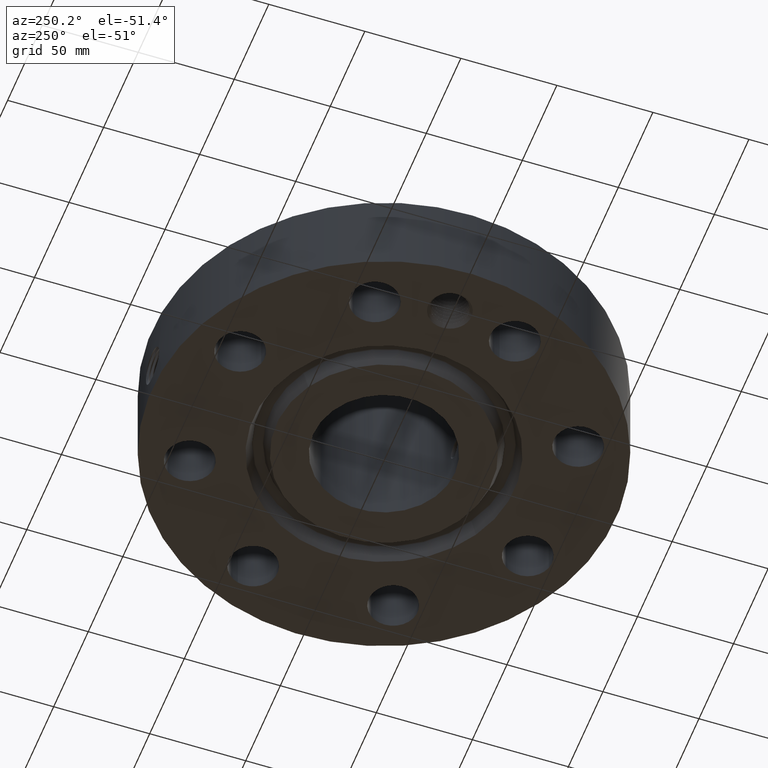
[diagram: clean part render]
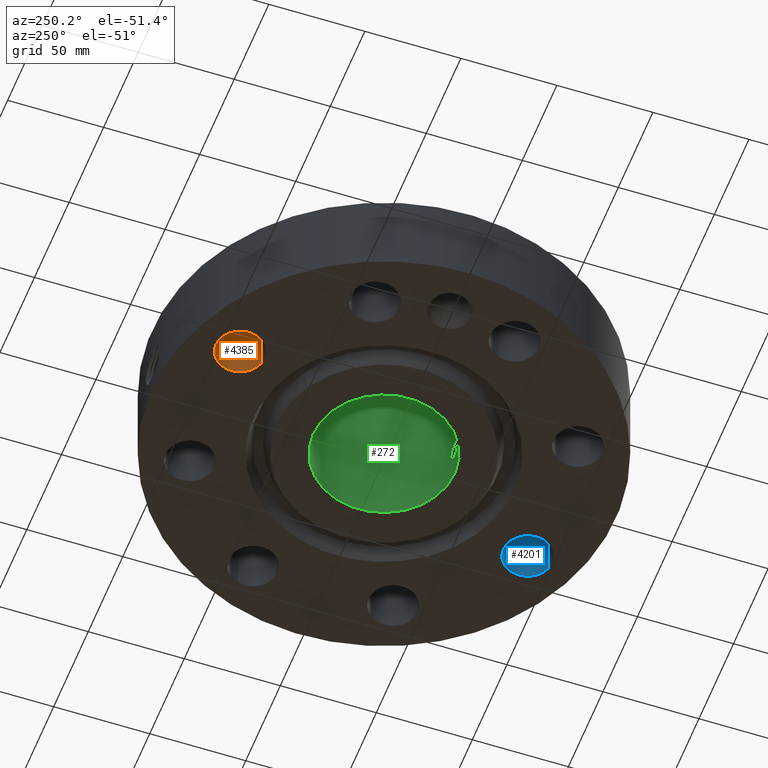
[diagram: same view with three faces highlighted in distinct colors, each labeled with its STEP entity id]
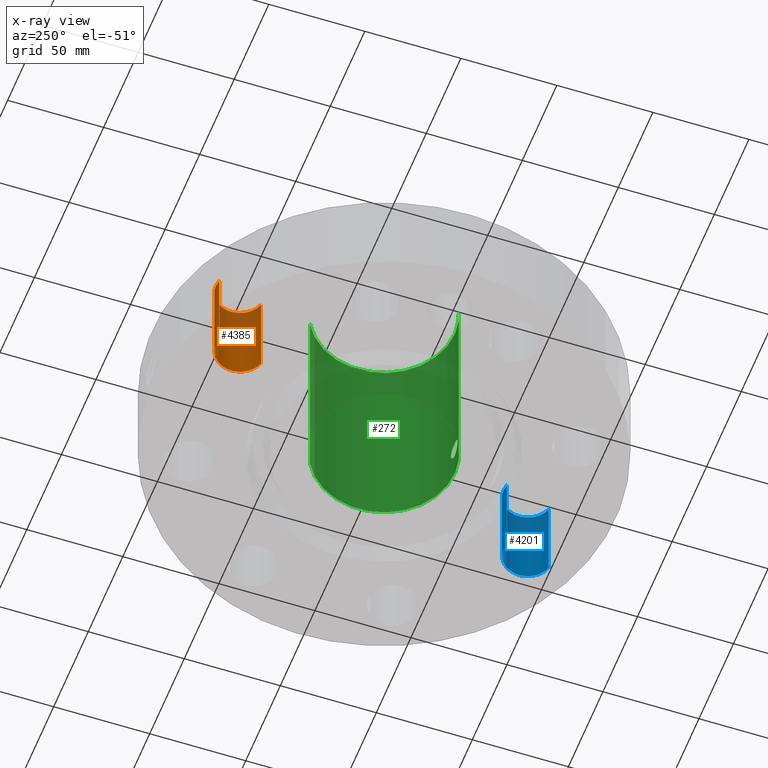
[diagram: x-ray of the same camera — body ghosted, the three highlighted faces saturated]
A machine part, auxiliary view with three faces highlighted in distinct colors.
The next image is the same camera in x-ray (body ghosted, the three faces saturated) — at least one of them is partly hidden behind the body in this view.
Their STEP definitions:

[orange] entity #4385 — the highlighted cylindrical surface (edge-blend (fillet) strip) has radius 12.7 mm, axis along (0, 0, -1).
#3048=AXIS2_PLACEMENT_3D('Circle Axis2P3D',#3046,#3047,$) ;
#4346=AXIS2_PLACEMENT_3D('Cylinder Axis2P3D',#4343,#4344,#4345) ;
#4376=AXIS2_PLACEMENT_3D('Circle Axis2P3D',#4374,#4375,$) ;
#3046=CARTESIAN_POINT('Axis2P3D Location',(-1.43506287137,3.46454824693,1.81200000001)) ;
#3050=CARTESIAN_POINT('Vertex',(-1.57583263695,3.94432306193,1.81200000001)) ;
#3052=CARTESIAN_POINT('Vertex',(-1.2942931058,2.98477343194,1.81200000001)) ;
#4343=CARTESIAN_POINT('Axis2P3D Location',(-1.43506287137,3.46454824693,1.80806299213)) ;
#4348=CARTESIAN_POINT('Line Origine',(-1.2942931058,2.98477343194,0.906000000004)) ;
#4352=CARTESIAN_POINT('Vertex',(-1.2942931058,2.98477343194,0.)) ;
#4359=CARTESIAN_POINT('Vertex',(-1.57583263695,3.94432306193,0.)) ;
#4362=CARTESIAN_POINT('Line Origine',(-1.57583263695,3.94432306193,0.906000000004)) ;
#4374=CARTESIAN_POINT('Axis2P3D Location',(-1.43506287137,3.46454824693,0.)) ;
#3047=DIRECTION('Axis2P3D Direction',(0.,0.,-0.0393700787402)) ;
#4344=DIRECTION('Axis2P3D Direction',(0.,0.,-0.0393700787402)) ;
#4345=DIRECTION('Axis2P3D XDirection',(-0.0110842335096,0.0377775444876,0.)) ;
#4349=DIRECTION('Vector Direction',(0.,0.,-0.0393700787402)) ;
#4363=DIRECTION('Vector Direction',(0.,0.,-0.0393700787402)) ;
#4375=DIRECTION('Axis2P3D Direction',(0.,0.,-0.0393700787402)) ;
#4350=VECTOR('Line Direction',#4349,0.0393700787402) ;
#4364=VECTOR('Line Direction',#4363,0.0393700787402) ;
#4380=ORIENTED_EDGE('',*,*,#4366,.F.) ;
#4381=ORIENTED_EDGE('',*,*,#4378,.T.) ;
#4382=ORIENTED_EDGE('',*,*,#4354,.T.) ;
#4383=ORIENTED_EDGE('',*,*,#3054,.F.) ;
#4385=ADVANCED_FACE('PartBody',(#4384),#4347,.F.) ;
#3049=CIRCLE('generated circle',#3048,0.500000000002) ;
#4377=CIRCLE('generated circle',#4376,0.500000000002) ;
#4347=CYLINDRICAL_SURFACE('generated cylinder',#4346,0.500000000002) ;
#3054=EDGE_CURVE('',#3051,#3053,#3049,.T.) ;
#4354=EDGE_CURVE('',#4353,#3053,#4351,.F.) ;
#4366=EDGE_CURVE('',#4360,#3051,#4365,.F.) ;
#4378=EDGE_CURVE('',#4360,#4353,#4377,.T.) ;
#4379=EDGE_LOOP('',(#4380,#4381,#4382,#4383)) ;
#4384=FACE_OUTER_BOUND('',#4379,.T.) ;
#4351=LINE('Line',#4348,#4350) ;
#4365=LINE('Line',#4362,#4364) ;
#3051=VERTEX_POINT('',#3050) ;
#3053=VERTEX_POINT('',#3052) ;
#4353=VERTEX_POINT('',#4352) ;
#4360=VERTEX_POINT('',#4359) ;

[blue] entity #4201 — the highlighted cylindrical surface (edge-blend (fillet) strip) has radius 12.7 mm, axis along (0, -0, -1).
#2985=AXIS2_PLACEMENT_3D('Circle Axis2P3D',#2983,#2984,$) ;
#4174=AXIS2_PLACEMENT_3D('Cylinder Axis2P3D',#4171,#4172,#4173) ;
#4185=AXIS2_PLACEMENT_3D('Circle Axis2P3D',#4183,#4184,$) ;
#2978=CARTESIAN_POINT('Vertex',(1.57583263695,-3.94432306193,1.81200000001)) ;
#2980=CARTESIAN_POINT('Vertex',(1.2942931058,-2.98477343194,1.81200000001)) ;
#2983=CARTESIAN_POINT('Axis2P3D Location',(1.43506287137,-3.46454824693,1.81200000001)) ;
#4171=CARTESIAN_POINT('Axis2P3D Location',(1.43506287137,-3.46454824693,1.80806299213)) ;
#4176=CARTESIAN_POINT('Line Origine',(1.2942931058,-2.98477343194,0.906000000004)) ;
#4180=CARTESIAN_POINT('Vertex',(1.2942931058,-2.98477343194,0.)) ;
#4183=CARTESIAN_POINT('Axis2P3D Location',(1.43506287137,-3.46454824693,0.)) ;
#4187=CARTESIAN_POINT('Vertex',(1.57583263695,-3.94432306193,0.)) ;
#4190=CARTESIAN_POINT('Line Origine',(1.57583263695,-3.94432306193,0.906000000004)) ;
#2984=DIRECTION('Axis2P3D Direction',(0.,0.,-0.0393700787402)) ;
#4172=DIRECTION('Axis2P3D Direction',(0.,-0.,-0.0393700787402)) ;
#4173=DIRECTION('Axis2P3D XDirection',(0.0110842335096,-0.0377775444876,0.)) ;
#4177=DIRECTION('Vector Direction',(0.,0.,-0.0393700787402)) ;
#4184=DIRECTION('Axis2P3D Direction',(0.,-0.,-0.0393700787402)) ;
#4191=DIRECTION('Vector Direction',(0.,0.,-0.0393700787402)) ;
#4178=VECTOR('Line Direction',#4177,0.0393700787402) ;
#4192=VECTOR('Line Direction',#4191,0.0393700787402) ;
#4196=ORIENTED_EDGE('',*,*,#4182,.F.) ;
#4197=ORIENTED_EDGE('',*,*,#4189,.T.) ;
#4198=ORIENTED_EDGE('',*,*,#4194,.T.) ;
#4199=ORIENTED_EDGE('',*,*,#2987,.F.) ;
#4201=ADVANCED_FACE('PartBody',(#4200),#4175,.F.) ;
#2986=CIRCLE('generated circle',#2985,0.500000000002) ;
#4186=CIRCLE('generated circle',#4185,0.500000000002) ;
#4175=CYLINDRICAL_SURFACE('generated cylinder',#4174,0.500000000002) ;
#2987=EDGE_CURVE('',#2981,#2979,#2986,.T.) ;
#4182=EDGE_CURVE('',#4181,#2981,#4179,.F.) ;
#4189=EDGE_CURVE('',#4181,#4188,#4186,.T.) ;
#4194=EDGE_CURVE('',#4188,#2979,#4193,.F.) ;
#4195=EDGE_LOOP('',(#4196,#4197,#4198,#4199)) ;
#4200=FACE_OUTER_BOUND('',#4195,.T.) ;
#4179=LINE('Line',#4176,#4178) ;
#4193=LINE('Line',#4190,#4192) ;
#2979=VERTEX_POINT('',#2978) ;
#2981=VERTEX_POINT('',#2980) ;
#4181=VERTEX_POINT('',#4180) ;
#4188=VERTEX_POINT('',#4187) ;

[green] entity #272 — the highlighted cylindrical surface (partial cylindrical patch) has radius 36.83 mm, axis along (0, 0, -1).
#232=AXIS2_PLACEMENT_3D('Cylinder Axis2P3D',#229,#230,#231) ;
#236=AXIS2_PLACEMENT_3D('Circle Axis2P3D',#234,#235,$) ;
#252=AXIS2_PLACEMENT_3D('Circle Axis2P3D',#250,#251,$) ;
#81=CARTESIAN_POINT('Control Point',(0.164546730355,-1.44063332377,0.660107711514)) ;
#82=CARTESIAN_POINT('Control Point',(0.153731070917,-1.44186867031,0.640309779711)) ;
#83=CARTESIAN_POINT('Control Point',(0.139944062612,-1.44334057186,0.622149863833)) ;
#84=CARTESIAN_POINT('Control Point',(0.12351022085,-1.44489924183,0.606210656527)) ;
#85=CARTESIAN_POINT('Control Point',(0.0771457999691,-1.44849158983,0.573196886422)) ;
#86=CARTESIAN_POINT('Control Point',(0.0211415929519,-1.45046277824,0.559002229906)) ;
#87=CARTESIAN_POINT('Control Point',(-0.0138878046317,-1.45055905133,0.558336349551)) ;
#88=CARTESIAN_POINT('Control Point',(-0.0704179716307,-1.44885595418,0.570406316136)) ;
#89=CARTESIAN_POINT('Control Point',(-0.118016274522,-1.4453687748,0.601663420161)) ;
#90=CARTESIAN_POINT('Control Point',(-0.135050970338,-1.44381724885,0.616987425156)) ;
#91=CARTESIAN_POINT('Control Point',(-0.174424580989,-1.43973531707,0.665004019664)) ;
#92=CARTESIAN_POINT('Control Point',(-0.19222728289,-1.43719598434,0.725976487033)) ;
#93=CARTESIAN_POINT('Control Point',(-0.192994747,-1.43707884691,0.766812208902)) ;
#94=CARTESIAN_POINT('Control Point',(-0.183180576886,-1.43850499696,0.805783261209)) ;
#95=CARTESIAN_POINT('Control Point',(-0.164546730355,-1.44063332377,0.839892288492)) ;
#96=CARTESIAN_POINT('Vertex',(0.164546730355,-1.44063332377,0.660107711514)) ;
#98=CARTESIAN_POINT('Vertex',(-0.164546730355,-1.44063332377,0.839892288492)) ;
#206=CARTESIAN_POINT('Control Point',(0.164546730355,-1.44063332377,0.660107711514)) ;
#207=CARTESIAN_POINT('Control Point',(0.180667055466,-1.43879208718,0.689615768701)) ;
#208=CARTESIAN_POINT('Control Point',(0.190186601224,-1.4374763703,0.722762639024)) ;
#209=CARTESIAN_POINT('Control Point',(0.191981284983,-1.43721395412,0.757610898278)) ;
#210=CARTESIAN_POINT('Control Point',(0.181826871863,-1.43868281963,0.814335575673)) ;
#211=CARTESIAN_POINT('Control Point',(0.152306940291,-1.44206046876,0.862832498136)) ;
#212=CARTESIAN_POINT('Control Point',(0.13761065576,-1.443595708,0.880350178278)) ;
#213=CARTESIAN_POINT('Control Point',(0.0949008374111,-1.44737324457,0.917937819125)) ;
#214=CARTESIAN_POINT('Control Point',(0.0406901605046,-1.4500144842,0.937807204923)) ;
#215=CARTESIAN_POINT('Control Point',(0.00590053300549,-1.45062862868,0.94208548022)) ;
#216=CARTESIAN_POINT('Control Point',(-0.0569774209271,-1.44961311014,0.935302563201)) ;
#217=CARTESIAN_POINT('Control Point',(-0.111576622257,-1.4460019669,0.904578320106)) ;
#218=CARTESIAN_POINT('Control Point',(-0.133344160777,-1.44404078035,0.886240728189)) ;
#219=CARTESIAN_POINT('Control Point',(-0.151205851828,-1.44215709661,0.864312602832)) ;
#220=CARTESIAN_POINT('Control Point',(-0.164546730355,-1.44063332377,0.839892288492)) ;
#229=CARTESIAN_POINT('Axis2P3D Location',(0.,0.,2.15600000001)) ;
#234=CARTESIAN_POINT('Axis2P3D Location',(0.,0.,4.31200000002)) ;
#238=CARTESIAN_POINT('Vertex',(0.695167030979,1.27249471475,4.31200000002)) ;
#240=CARTESIAN_POINT('Vertex',(-0.695167030979,-1.27249471475,4.31200000002)) ;
#243=CARTESIAN_POINT('Line Origine',(0.695167030979,1.27249471475,2.15600000001)) ;
#247=CARTESIAN_POINT('Vertex',(0.695167030979,1.27249471475,-5.87456592558E-015)) ;
#250=CARTESIAN_POINT('Axis2P3D Location',(0.,0.,-6.15430716013E-015)) ;
#254=CARTESIAN_POINT('Vertex',(-0.695167030979,-1.27249471475,-5.87456592558E-015)) ;
#257=CARTESIAN_POINT('Line Origine',(-0.695167030979,-1.27249471475,2.15600000001)) ;
#230=DIRECTION('Axis2P3D Direction',(0.,0.,-0.0393700787402)) ;
#231=DIRECTION('Axis2P3D XDirection',(-0.0188750212049,-0.0345504945626,0.)) ;
#235=DIRECTION('Axis2P3D Direction',(0.,0.,-0.0393700787402)) ;
#244=DIRECTION('Vector Direction',(0.,0.,-0.0393700787402)) ;
#251=DIRECTION('Axis2P3D Direction',(0.,0.,-0.0393700787402)) ;
#258=DIRECTION('Vector Direction',(0.,0.,-0.0393700787402)) ;
#245=VECTOR('Line Direction',#244,0.0393700787402) ;
#259=VECTOR('Line Direction',#258,0.0393700787402) ;
#263=ORIENTED_EDGE('',*,*,#242,.F.) ;
#264=ORIENTED_EDGE('',*,*,#249,.T.) ;
#265=ORIENTED_EDGE('',*,*,#256,.T.) ;
#266=ORIENTED_EDGE('',*,*,#261,.F.) ;
#269=ORIENTED_EDGE('',*,*,#100,.F.) ;
#270=ORIENTED_EDGE('',*,*,#221,.T.) ;
#271=FACE_BOUND('',#268,.T.) ;
#272=ADVANCED_FACE('PartBody',(#267,#271),#233,.F.) ;
#80=B_SPLINE_CURVE_WITH_KNOTS('',5,(#81,#82,#83,#84,#85,#86,#87,#88,#89,#90,#91,#92,#93,#94,#95),.UNSPECIFIED.,.F.,.U.,(6,3,3,3,6),(0.,4.05789415009,10.1286634854,14.189742003,21.1809178312),.UNSPECIFIED.) ;
#205=B_SPLINE_CURVE_WITH_KNOTS('',5,(#206,#207,#208,#209,#210,#211,#212,#213,#214,#215,#216,#217,#218,#219,#220),.UNSPECIFIED.,.F.,.U.,(6,3,3,3,6),(0.,6.04813542266,10.1009760654,16.1756421197,21.1809654883),.UNSPECIFIED.) ;
#237=CIRCLE('generated circle',#236,1.45000000001) ;
#253=CIRCLE('generated circle',#252,1.45000000001) ;
#233=CYLINDRICAL_SURFACE('generated cylinder',#232,1.45000000001) ;
#100=EDGE_CURVE('',#97,#99,#80,.T.) ;
#221=EDGE_CURVE('',#97,#99,#205,.T.) ;
#242=EDGE_CURVE('',#239,#241,#237,.T.) ;
#249=EDGE_CURVE('',#239,#248,#246,.T.) ;
#256=EDGE_CURVE('',#248,#255,#253,.T.) ;
#261=EDGE_CURVE('',#241,#255,#260,.T.) ;
#262=EDGE_LOOP('',(#263,#264,#265,#266)) ;
#268=EDGE_LOOP('',(#269,#270)) ;
#267=FACE_OUTER_BOUND('',#262,.T.) ;
#246=LINE('Line',#243,#245) ;
#260=LINE('Line',#257,#259) ;
#97=VERTEX_POINT('',#96) ;
#99=VERTEX_POINT('',#98) ;
#239=VERTEX_POINT('',#238) ;
#241=VERTEX_POINT('',#240) ;
#248=VERTEX_POINT('',#247) ;
#255=VERTEX_POINT('',#254) ;